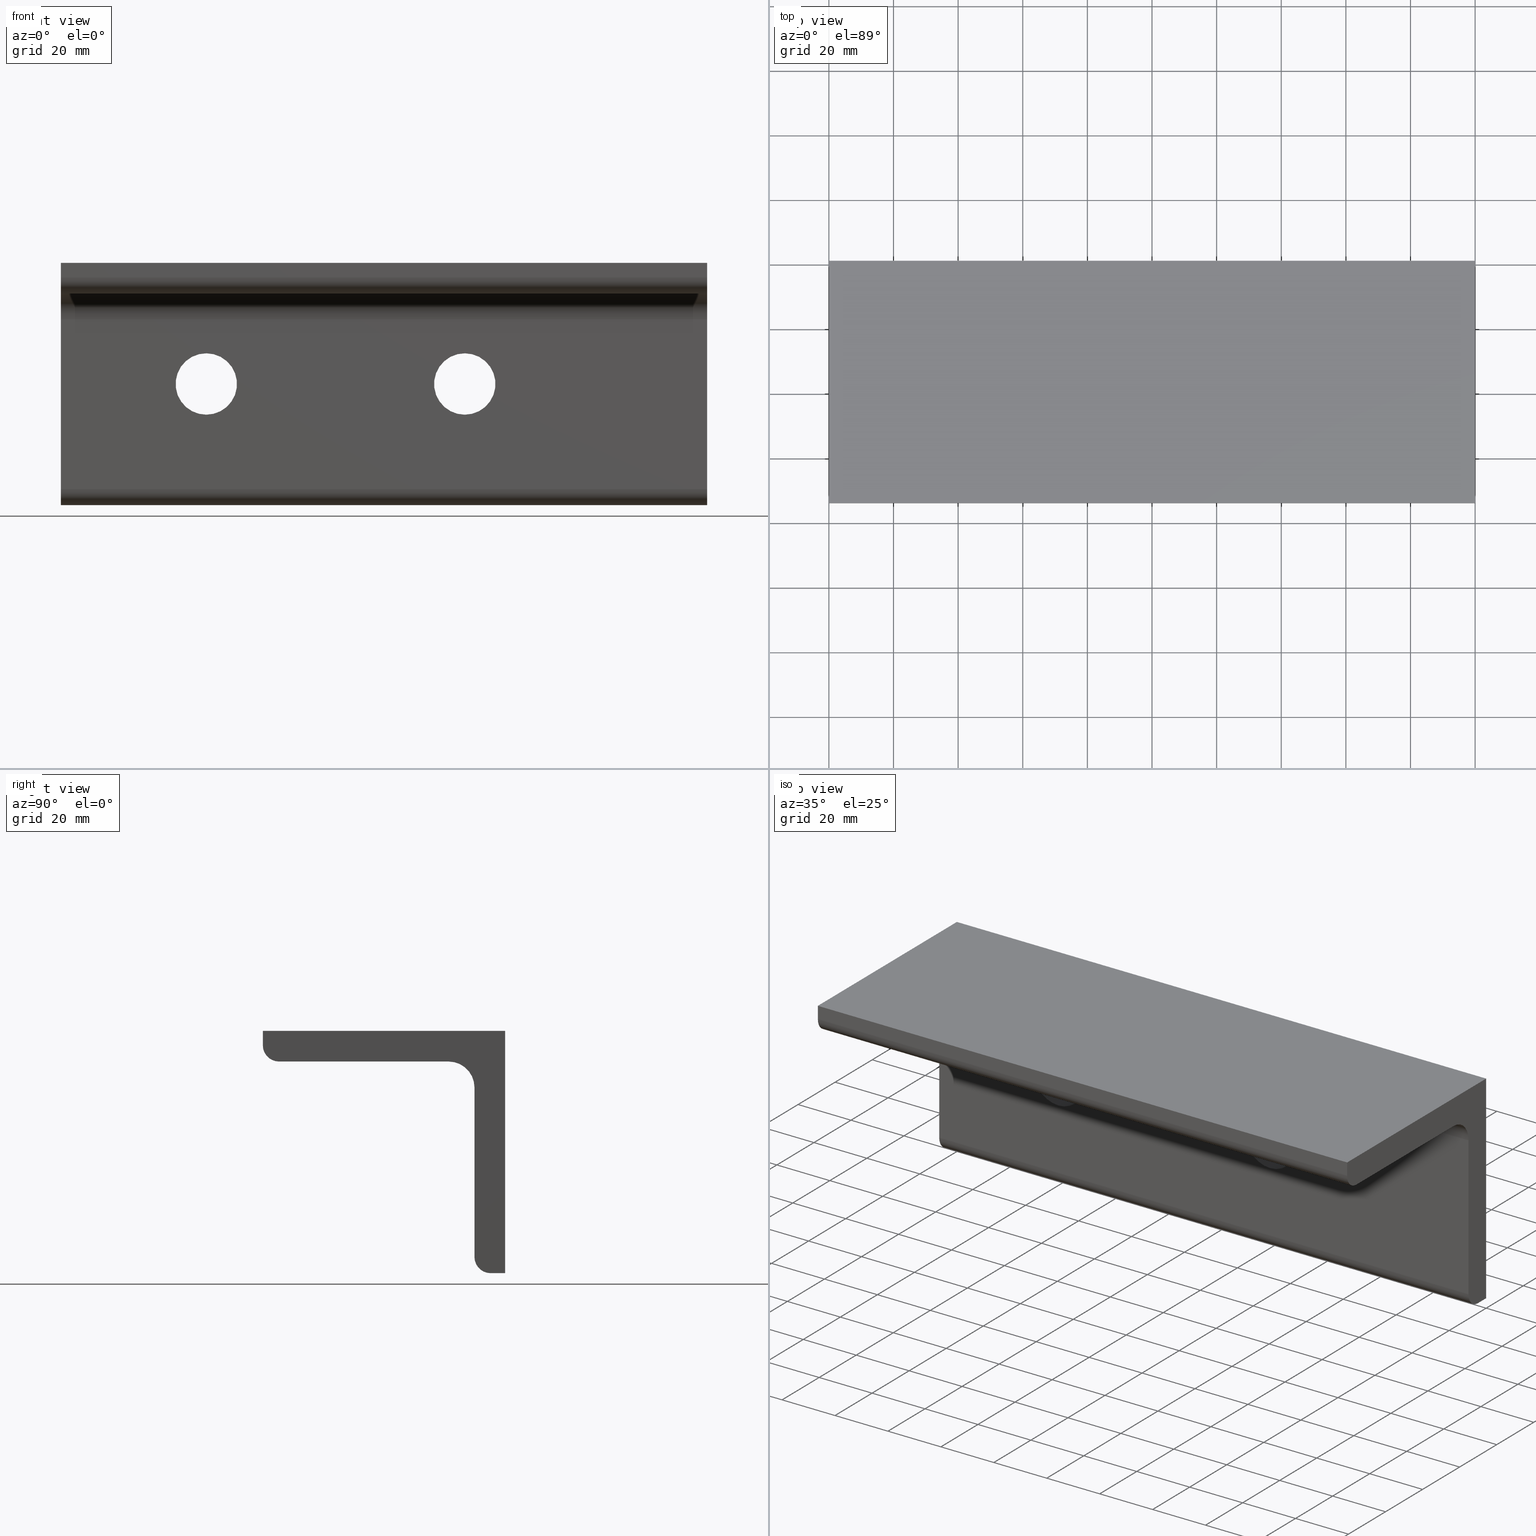
[diagram: canonical four-view strip — front | top / right | iso, engineering-drawing reading convention]
A machine part, canonical four-view strip (front | top / right | iso — engineering-drawing reading convention). The complete STEP part file that produces these views, byte-faithful:
ISO-10303-21;
HEADER;
FILE_DESCRIPTION (( 'STEP AP203' ),
    '1' );
FILE_NAME ('20-20_REV_.step',
    '2026-01-19T06:02:51',
    ( '' ),
    ( '' ),
    'SwSTEP 2.0',
    'SolidWorks 2025',
    '' );
FILE_SCHEMA (( 'CONFIG_CONTROL_DESIGN' ));
ENDSEC;

DATA;
#1 = CARTESIAN_POINT ( 'NONE',  ( -100.0000000000000000, -8.106328815793483398E-13, -75.00000000000000000 ) ) ;
#2 = ORIENTED_EDGE ( 'NONE', *, *, #352, .T. ) ;
#3 = EDGE_CURVE ( 'NONE', #164, #5, #490, .T. ) ;
#4 = CARTESIAN_POINT ( 'NONE',  ( -99.99999999999998579, -75.00000000000007105, -4.499999999999216627 ) ) ;
#5 = VERTEX_POINT ( 'NONE', #443 ) ;
#6 = DIRECTION ( 'NONE',  ( -0.000000000000000000, 1.000000000000000000, -1.050085944124627333E-14 ) ) ;
#7 = ORIENTED_EDGE ( 'NONE', *, *, #445, .F. ) ;
#8 = VECTOR ( 'NONE', #151, 1000.000000000000000 ) ;
#9 = DIRECTION ( 'NONE',  ( 0.000000000000000000, 1.233581138472396191E-14, 1.000000000000000000 ) ) ;
#10 = EDGE_LOOP ( 'NONE', ( #351, #253, #160, #298 ) ) ;
#11 = EDGE_CURVE ( 'NONE', #436, #386, #295, .T. ) ;
#12 = CARTESIAN_POINT ( 'NONE',  ( 24.99999999999999289, -2.936321773791686699E-13, -28.00000000000001066 ) ) ;
#13 = VERTEX_POINT ( 'NONE', #63 ) ;
#14 = EDGE_CURVE ( 'NONE', #415, #514, #280, .T. ) ;
#15 = DIRECTION ( 'NONE',  ( 0.000000000000000000, 1.000000000000000000, 0.000000000000000000 ) ) ;
#16 = EDGE_LOOP ( 'NONE', ( #502, #248, #219, #438 ) ) ;
#17 = CIRCLE ( 'NONE', #427, 4.999999999999997335 ) ;
#18 = EDGE_CURVE ( 'NONE', #52, #523, #106, .T. ) ;
#19 = CARTESIAN_POINT ( 'NONE',  ( -55.00000000000000711, -2.940240643548956406E-13, -28.00000000000000000 ) ) ;
#20 = CIRCLE ( 'NONE', #316, 9.499999999999987566 ) ;
#21 = DIRECTION ( 'NONE',  ( -0.000000000000000000, 1.000000000000000000, -1.050085944124627333E-14 ) ) ;
#22 = APPROVAL ( #463, 'UNSPECIFIED' ) ;
#23 = FACE_OUTER_BOUND ( 'NONE', #554, .T. ) ;
#24 = PERSON ( 'UNSPECIFIED', 'UNSPECIFIED', 'UNSPECIFIED', ('UNSPECIFIED'), ('UNSPECIFIED'), ('UNSPECIFIED') ) ;
#25 = DIRECTION ( 'NONE',  ( 1.000000000000000000, 3.061616997868383141E-16, -0.000000000000000000 ) ) ;
#26 = CYLINDRICAL_SURFACE ( 'NONE', #480, 9.499999999999991118 ) ;
#27 = PERSON_AND_ORGANIZATION ( #24, #556 ) ;
#28 = DIRECTION ( 'NONE',  ( 0.000000000000000000, -1.059094332701630981E-14, -1.000000000000000000 ) ) ;
#29 = VECTOR ( 'NONE', #279, 1000.000000000000000 ) ;
#30 = APPROVAL_STATUS ( 'not_yet_approved' ) ;
#31 = CARTESIAN_POINT ( 'NONE',  ( 24.99999999999999289, -9.500000000000483169, -46.99999999999988631 ) ) ;
#32 = EDGE_CURVE ( 'NONE', #269, #13, #105, .T. ) ;
#33 = PRODUCT_DEFINITION_SHAPE ( 'NONE', 'NONE',  #312 ) ;
#34 = DATE_AND_TIME ( #246, #278 ) ;
#35 = FACE_OUTER_BOUND ( 'NONE', #139, .T. ) ;
#36 = ORIENTED_EDGE ( 'NONE', *, *, #58, .T. ) ;
#37 = PERSON_AND_ORGANIZATION ( #24, #556 ) ;
#38 = FACE_OUTER_BOUND ( 'NONE', #10, .T. ) ;
#39 = CC_DESIGN_APPROVAL ( #80, ( #159 ) ) ;
#40 = CC_DESIGN_DATE_AND_TIME_ASSIGNMENT ( #413, #43, ( #159 ) ) ;
#41 = DIRECTION ( 'NONE',  ( 0.000000000000000000, 1.000000000000000000, 0.000000000000000000 ) ) ;
#42 = EDGE_LOOP ( 'NONE', ( #2, #257, #92, #47 ) ) ;
#43 = DATE_TIME_ROLE ( 'classification_date' ) ;
#44 = CARTESIAN_POINT ( 'NONE',  ( -100.0000000000000000, -4.500000000000759393, -69.99999999999995737 ) ) ;
#45 = ORIENTED_EDGE ( 'NONE', *, *, #426, .F. ) ;
#46 = FACE_BOUND ( 'NONE', #223, .T. ) ;
#47 = ORIENTED_EDGE ( 'NONE', *, *, #494, .T. ) ;
#48 = VECTOR ( 'NONE', #361, 1000.000000000000000 ) ;
#49 = PLANE ( 'NONE',  #184 ) ;
#50 = ORIENTED_EDGE ( 'NONE', *, *, #426, .T. ) ;
#51 = CYLINDRICAL_SURFACE ( 'NONE', #258, 9.499999999999991118 ) ;
#52 = VERTEX_POINT ( 'NONE', #31 ) ;
#53 = EDGE_CURVE ( 'NONE', #94, #127, #108, .T. ) ;
#54 = DIRECTION ( 'NONE',  ( 1.000000000000000000, 3.061616997868383141E-16, 0.000000000000000000 ) ) ;
#55 = ORIENTED_EDGE ( 'NONE', *, *, #397, .T. ) ;
#56 = AXIS2_PLACEMENT_3D ( 'NONE', #289, #454, #41 ) ;
#57 = FACE_BOUND ( 'NONE', #335, .T. ) ;
#58 = EDGE_CURVE ( 'NONE', #505, #127, #329, .T. ) ;
#59 = VERTEX_POINT ( 'NONE', #113 ) ;
#60 = FACE_BOUND ( 'NONE', #392, .T. ) ;
#61 = ORIENTED_EDGE ( 'NONE', *, *, #14, .T. ) ;
#62 = APPLICATION_PROTOCOL_DEFINITION ( 'international standard', 'config_control_design', 1994, #77 ) ;
#63 = CARTESIAN_POINT ( 'NONE',  ( 100.0000000000000000, -7.494005416219806648E-13, -75.00000000000000000 ) ) ;
#64 =( LENGTH_UNIT ( ) NAMED_UNIT ( * ) SI_UNIT ( .MILLI., .METRE. ) );
#65 = AXIS2_PLACEMENT_3D ( 'NONE', #377, #373, #550 ) ;
#66 = LINE ( 'NONE', #326, #8 ) ;
#67 = CARTESIAN_POINT ( 'NONE',  ( -55.00000000000000711, -2.936321773791685689E-13, -28.00000000000000355 ) ) ;
#68 = ORIENTED_EDGE ( 'NONE', *, *, #531, .F. ) ;
#69 = FACE_OUTER_BOUND ( 'NONE', #266, .T. ) ;
#70 = AXIS2_PLACEMENT_3D ( 'NONE', #116, #501, #247 ) ;
#71 = DIRECTION ( 'NONE',  ( -0.000000000000000000, 1.000000000000000000, -1.050085944124627333E-14 ) ) ;
#72 = VECTOR ( 'NONE', #442, 1000.000000000000000 ) ;
#73 = EDGE_CURVE ( 'NONE', #59, #479, #281, .T. ) ;
#74 = PERSON_AND_ORGANIZATION ( #24, #556 ) ;
#75 = LINE ( 'NONE', #166, #451 ) ;
#76 = COORDINATED_UNIVERSAL_TIME_OFFSET ( 10, 0, .AHEAD. ) ;
#77 = APPLICATION_CONTEXT ( 'configuration controlled 3d designs of mechanical parts and assemblies' ) ;
#78 = FACE_OUTER_BOUND ( 'NONE', #431, .T. ) ;
#79 = ORIENTED_EDGE ( 'NONE', *, *, #267, .T. ) ;
#80 = APPROVAL ( #30, 'UNSPECIFIED' ) ;
#81 = CARTESIAN_POINT ( 'NONE',  ( -100.0000000000000000, -2.306842348587790320E-14, 0.000000000000000000 ) ) ;
#82 = AXIS2_PLACEMENT_3D ( 'NONE', #534, #71, #450 ) ;
#83 = VERTEX_POINT ( 'NONE', #143 ) ;
#84 = PERSON_AND_ORGANIZATION_ROLE ( 'design_supplier' ) ;
#85 = CARTESIAN_POINT ( 'NONE',  ( -100.0000000000000000, -2.306842348587790320E-14, 0.000000000000000000 ) ) ;
#86 = VERTEX_POINT ( 'NONE', #406 ) ;
#87 = CARTESIAN_POINT ( 'NONE',  ( 100.0000000000000000, -9.500000000000147438, -17.49999999999990052 ) ) ;
#88 = EDGE_CURVE ( 'NONE', #59, #164, #416, .T. ) ;
#89 = DIRECTION ( 'NONE',  ( 1.850371707708594316E-16, -1.000000000000000000, 1.045460014855355795E-14 ) ) ;
#90 = ORIENTED_EDGE ( 'NONE', *, *, #455, .F. ) ;
#91 = PLANE ( 'NONE',  #183 ) ;
#92 = ORIENTED_EDGE ( 'NONE', *, *, #88, .F. ) ;
#93 = DIRECTION ( 'NONE',  ( 0.000000000000000000, 1.050085944124627649E-14, 1.000000000000000000 ) ) ;
#94 = VERTEX_POINT ( 'NONE', #276 ) ;
#95 = CARTESIAN_POINT ( 'NONE',  ( -100.0000000000000000, -2.306842348587790320E-14, 0.000000000000000000 ) ) ;
#96 = ORIENTED_EDGE ( 'NONE', *, *, #402, .T. ) ;
#97 = AXIS2_PLACEMENT_3D ( 'NONE', #187, #485, #535 ) ;
#98 = VECTOR ( 'NONE', #349, 1000.000000000000000 ) ;
#99 = DIRECTION ( 'NONE',  ( -3.200798152072889754E-30, 1.045460014855355953E-14, 1.000000000000000000 ) ) ;
#100 = ORIENTED_EDGE ( 'NONE', *, *, #233, .T. ) ;
#101 = DIRECTION ( 'NONE',  ( 1.000000000000000000, 3.061616997868383141E-16, 0.000000000000000000 ) ) ;
#102 = DIRECTION ( 'NONE',  ( 1.000000000000000000, 3.061616997868383141E-16, -0.000000000000000000 ) ) ;
#103 = EDGE_CURVE ( 'NONE', #225, #13, #66, .T. ) ;
#104 = DIRECTION ( 'NONE',  ( 0.000000000000000000, 0.000000000000000000, 1.000000000000000000 ) ) ;
#105 = LINE ( 'NONE', #365, #506 ) ;
#106 = CIRCLE ( 'NONE', #277, 9.499999999999987566 ) ;
#107 = VECTOR ( 'NONE', #524, 1000.000000000000000 ) ;
#108 = LINE ( 'NONE', #230, #251 ) ;
#109 = MECHANICAL_CONTEXT ( 'NONE', #222, 'mechanical' ) ;
#110 = DIRECTION ( 'NONE',  ( -0.000000000000000000, 1.000000000000000000, -1.050085944124627333E-14 ) ) ;
#111 = EDGE_CURVE ( 'NONE', #477, #415, #404, .T. ) ;
#112 = DIRECTION ( 'NONE',  ( 1.000000000000000000, 3.061616997868383141E-16, -0.000000000000000000 ) ) ;
#113 = CARTESIAN_POINT ( 'NONE',  ( -100.0000000000000000, -9.500000000000207834, -17.49999999999990052 ) ) ;
#114 = MANIFOLD_SOLID_BREP ( 'M16 Clearance Hole1', #518 ) ;
#115 = COORDINATED_UNIVERSAL_TIME_OFFSET ( 10, 0, .AHEAD. ) ;
#116 = CARTESIAN_POINT ( 'NONE',  ( -55.00000000000000711, -3.937822290467351599E-13, -37.49999999999999289 ) ) ;
#117 = VECTOR ( 'NONE', #245, 1000.000000000000000 ) ;
#118 = DIRECTION ( 'NONE',  ( 0.000000000000000000, -1.050085944124627333E-14, -1.000000000000000000 ) ) ;
#119 = ORIENTED_EDGE ( 'NONE', *, *, #217, .T. ) ;
#120 = CC_DESIGN_DATE_AND_TIME_ASSIGNMENT ( #493, #418, ( #312 ) ) ;
#121 = DIRECTION ( 'NONE',  ( -0.000000000000000000, 1.000000000000000000, -1.050085944124627333E-14 ) ) ;
#122 = EDGE_LOOP ( 'NONE', ( #61, #135, #178, #162 ) ) ;
#123 = DIRECTION ( 'NONE',  ( 0.000000000000000000, -1.000000000000000000, 1.233581138472396033E-14 ) ) ;
#124 = APPROVAL_PERSON_ORGANIZATION ( #206, #22, #336 ) ;
#125 = ORIENTED_EDGE ( 'NONE', *, *, #233, .F. ) ;
#126 = CARTESIAN_POINT ( 'NONE',  ( -100.0000000000000000, -8.106328815793483398E-13, -75.00000000000000000 ) ) ;
#127 = VERTEX_POINT ( 'NONE', #190 ) ;
#128 = DIRECTION ( 'NONE',  ( 0.000000000000000000, 1.233581138472396033E-14, 1.000000000000000000 ) ) ;
#129 = ORIENTED_EDGE ( 'NONE', *, *, #412, .F. ) ;
#130 = CARTESIAN_POINT ( 'NONE',  ( 100.0000000000000000, -17.50000000000006395, -9.499999999999815259 ) ) ;
#131 = ORIENTED_EDGE ( 'NONE', *, *, #103, .T. ) ;
#132 = VECTOR ( 'NONE', #236, 1000.000000000000000 ) ;
#133 = VECTOR ( 'NONE', #89, 1000.000000000000000 ) ;
#134 = CARTESIAN_POINT ( 'NONE',  ( -100.0000000000000000, -4.500000000000815348, -74.99999999999995737 ) ) ;
#135 = ORIENTED_EDGE ( 'NONE', *, *, #384, .F. ) ;
#136 = LINE ( 'NONE', #393, #495 ) ;
#137 = VERTEX_POINT ( 'NONE', #363 ) ;
#138 = DIRECTION ( 'NONE',  ( 1.000000000000000000, 3.061616997868383141E-16, 0.000000000000000000 ) ) ;
#139 = EDGE_LOOP ( 'NONE', ( #500, #468, #173, #182 ) ) ;
#140 = CIRCLE ( 'NONE', #472, 5.000000000000004441 ) ;
#141 = ADVANCED_FACE ( 'NONE', ( #283 ), #492, .F. ) ;
#142 = CARTESIAN_POINT ( 'NONE',  ( 24.99999999999999289, -9.500000000000282441, -27.99999999999991118 ) ) ;
#143 = CARTESIAN_POINT ( 'NONE',  ( 100.0000000000000000, -9.500000000000701661, -69.99999999999990052 ) ) ;
#144 = PRODUCT_RELATED_PRODUCT_CATEGORY ( 'detail', '', ( #340 ) ) ;
#145 = DIRECTION ( 'NONE',  ( 0.000000000000000000, 1.000000000000000000, 0.000000000000000000 ) ) ;
#146 = CARTESIAN_POINT ( 'NONE',  ( -100.0000000000000000, -2.306842348587790320E-14, 0.000000000000000000 ) ) ;
#147 = CARTESIAN_POINT ( 'NONE',  ( -100.0000000000000000, -17.50000000000020961, -17.49999999999981881 ) ) ;
#148 = EDGE_CURVE ( 'NONE', #381, #348, #447, .T. ) ;
#149 = CIRCLE ( 'NONE', #462, 9.499999999999994671 ) ;
#150 = LINE ( 'NONE', #357, #367 ) ;
#151 = DIRECTION ( 'NONE',  ( 1.000000000000000000, 3.061616997868383141E-16, -0.000000000000000000 ) ) ;
#152 = CARTESIAN_POINT ( 'NONE',  ( -99.99999999999998579, -75.00000000000007105, -4.499999999999216627 ) ) ;
#153 = APPROVAL_ROLE ( '' ) ;
#154 = CARTESIAN_POINT ( 'NONE',  ( 24.99999999999999289, -2.940240643548957416E-13, -28.00000000000000711 ) ) ;
#155 = VECTOR ( 'NONE', #169, 1000.000000000000000 ) ;
#156 = VECTOR ( 'NONE', #102, 1000.000000000000000 ) ;
#157 = ADVANCED_FACE ( 'NONE', ( #69 ), #26, .F. ) ;
#158 = DIRECTION ( 'NONE',  ( 0.000000000000000000, -1.059094332701630192E-14, -1.000000000000000000 ) ) ;
#159 = SECURITY_CLASSIFICATION ( '', '', #552 ) ;
#160 = ORIENTED_EDGE ( 'NONE', *, *, #243, .T. ) ;
#161 = PLANE ( 'NONE',  #374 ) ;
#162 = ORIENTED_EDGE ( 'NONE', *, *, #111, .T. ) ;
#163 = CARTESIAN_POINT ( 'NONE',  ( -99.99999999999998579, -70.00000000000005684, -4.499999999999268141 ) ) ;
#164 = VERTEX_POINT ( 'NONE', #242 ) ;
#165 = CALENDAR_DATE ( 2026, 19, 1 ) ;
#166 = CARTESIAN_POINT ( 'NONE',  ( -100.0000000000000000, -2.306842348587790320E-14, 0.000000000000000000 ) ) ;
#167 = CIRCLE ( 'NONE', #417, 5.000000000000004441 ) ;
#168 = ORIENTED_EDGE ( 'NONE', *, *, #384, .T. ) ;
#169 = DIRECTION ( 'NONE',  ( 2.643388153869420311E-16, -1.000000000000000000, 1.040834085586084257E-14 ) ) ;
#170 = ORIENTED_EDGE ( 'NONE', *, *, #88, .T. ) ;
#171 = EDGE_CURVE ( 'NONE', #52, #386, #410, .T. ) ;
#172 = CARTESIAN_POINT ( 'NONE',  ( 100.0000000000000000, 3.816391647148975608E-14, 0.000000000000000000 ) ) ;
#173 = ORIENTED_EDGE ( 'NONE', *, *, #262, .F. ) ;
#174 = DIRECTION ( 'NONE',  ( 0.000000000000000000, 1.000000000000000000, 0.000000000000000000 ) ) ;
#175 = CC_DESIGN_PERSON_AND_ORGANIZATION_ASSIGNMENT ( #509, #538, ( #159 ) ) ;
#176 = ORIENTED_EDGE ( 'NONE', *, *, #53, .F. ) ;
#177 = LINE ( 'NONE', #388, #98 ) ;
#178 = ORIENTED_EDGE ( 'NONE', *, *, #397, .F. ) ;
#179 = LINE ( 'NONE', #172, #133 ) ;
#180 = EDGE_LOOP ( 'NONE', ( #420, #238, #525, #50 ) ) ;
#181 = CARTESIAN_POINT ( 'NONE',  ( 100.0000000000000142, -74.99999999999995737, 7.840950111415168067E-13 ) ) ;
#182 = ORIENTED_EDGE ( 'NONE', *, *, #3, .T. ) ;
#183 = AXIS2_PLACEMENT_3D ( 'NONE', #473, #345, #306 ) ;
#184 = AXIS2_PLACEMENT_3D ( 'NONE', #95, #99, #347 ) ;
#185 = EDGE_CURVE ( 'NONE', #225, #137, #510, .T. ) ;
#186 = LINE ( 'NONE', #446, #29 ) ;
#187 = CARTESIAN_POINT ( 'NONE',  ( -55.00000000000000711, -3.933903420710080378E-13, -37.49999999999999289 ) ) ;
#188 = CARTESIAN_POINT ( 'NONE',  ( 100.0000000000000000, -4.500000000000698108, -69.99999999999995737 ) ) ;
#189 = EDGE_CURVE ( 'NONE', #228, #225, #252, .T. ) ;
#190 = CARTESIAN_POINT ( 'NONE',  ( -55.00000000000000711, -4.931485067628474561E-13, -46.99999999999997868 ) ) ;
#191 = DIRECTION ( 'NONE',  ( 0.000000000000000000, -1.050085944124627333E-14, -1.000000000000000000 ) ) ;
#192 = EDGE_CURVE ( 'NONE', #13, #511, #539, .T. ) ;
#193 = LOCAL_TIME ( 17, 2, 51.00000000000000000, #115 ) ;
#194 = PERSON_AND_ORGANIZATION_ROLE ( 'design_owner' ) ;
#195 = VERTEX_POINT ( 'NONE', #87 ) ;
#196 = CARTESIAN_POINT ( 'NONE',  ( -100.0000000000000000, -8.106328815793483398E-13, -75.00000000000000000 ) ) ;
#197 = EDGE_CURVE ( 'NONE', #94, #86, #149, .T. ) ;
#198 = PERSON_AND_ORGANIZATION ( #24, #556 ) ;
#199 = PLANE ( 'NONE',  #65 ) ;
#200 = EDGE_LOOP ( 'NONE', ( #176, #425, #429, #36 ) ) ;
#201 = ADVANCED_FACE ( 'NONE', ( #419 ), #292, .F. ) ;
#202 = VECTOR ( 'NONE', #118, 1000.000000000000000 ) ;
#203 = DIRECTION ( 'NONE',  ( 0.000000000000000000, -1.000000000000000000, 1.233581138472396033E-14 ) ) ;
#204 = LOCAL_TIME ( 17, 2, 51.00000000000000000, #76 ) ;
#205 = ORIENTED_EDGE ( 'NONE', *, *, #317, .F. ) ;
#206 = PERSON_AND_ORGANIZATION ( #24, #556 ) ;
#207 = LINE ( 'NONE', #154, #359 ) ;
#208 = ADVANCED_FACE ( 'NONE', ( #286 ), #424, .F. ) ;
#209 = ORIENTED_EDGE ( 'NONE', *, *, #185, .F. ) ;
#210 = APPROVAL_DATE_TIME ( #498, #220 ) ;
#211 = CARTESIAN_POINT ( 'NONE',  ( 100.0000000000000000, -7.494005416219806648E-13, -75.00000000000000000 ) ) ;
#212 = ORIENTED_EDGE ( 'NONE', *, *, #189, .T. ) ;
#213 = CARTESIAN_POINT ( 'NONE',  ( -55.00000000000000711, -3.937822290467351599E-13, -37.49999999999999289 ) ) ;
#214 = VECTOR ( 'NONE', #529, 1000.000000000000000 ) ;
#215 = LOCAL_TIME ( 17, 2, 51.00000000000000000, #379 ) ;
#216 = ORIENTED_EDGE ( 'NONE', *, *, #192, .T. ) ;
#217 = EDGE_CURVE ( 'NONE', #228, #269, #75, .T. ) ;
#218 = LINE ( 'NONE', #130, #155 ) ;
#219 = ORIENTED_EDGE ( 'NONE', *, *, #73, .T. ) ;
#220 = APPROVAL ( #456, 'UNSPECIFIED' ) ;
#221 = DIRECTION ( 'NONE',  ( 0.000000000000000000, -1.059094332701630192E-14, -1.000000000000000000 ) ) ;
#222 = APPLICATION_CONTEXT ( 'configuration controlled 3d designs of mechanical parts and assemblies' ) ;
#223 = EDGE_LOOP ( 'NONE', ( #68, #354 ) ) ;
#224 = DIRECTION ( 'NONE',  ( -0.000000000000000000, 1.000000000000000000, -1.050085944124627333E-14 ) ) ;
#225 = VERTEX_POINT ( 'NONE', #126 ) ;
#226 = AXIS2_PLACEMENT_3D ( 'NONE', #310, #6, #302 ) ;
#227 = FACE_OUTER_BOUND ( 'NONE', #16, .T. ) ;
#228 = VERTEX_POINT ( 'NONE', #370 ) ;
#229 = ORIENTED_EDGE ( 'NONE', *, *, #531, .T. ) ;
#230 = CARTESIAN_POINT ( 'NONE',  ( -55.00000000000000711, -4.935403937385747298E-13, -46.99999999999998579 ) ) ;
#231 = CIRCLE ( 'NONE', #226, 9.499999999999987566 ) ;
#232 = CIRCLE ( 'NONE', #497, 9.499999999999994671 ) ;
#233 = EDGE_CURVE ( 'NONE', #523, #436, #207, .T. ) ;
#234 = ORIENTED_EDGE ( 'NONE', *, *, #73, .F. ) ;
#235 = DIRECTION ( 'NONE',  ( 0.000000000000000000, -1.059094332701630981E-14, -1.000000000000000000 ) ) ;
#236 = DIRECTION ( 'NONE',  ( 1.000000000000000000, 3.061616997868383141E-16, -0.000000000000000000 ) ) ;
#237 = CARTESIAN_POINT ( 'NONE',  ( 100.0000000000000000, -4.500000000000698108, -69.99999999999995737 ) ) ;
#238 = ORIENTED_EDGE ( 'NONE', *, *, #540, .F. ) ;
#239 = VECTOR ( 'NONE', #334, 1000.000000000000000 ) ;
#240 = AXIS2_PLACEMENT_3D ( 'NONE', #360, #104, #319 ) ;
#241 = CALENDAR_DATE ( 2026, 19, 1 ) ;
#242 = CARTESIAN_POINT ( 'NONE',  ( -100.0000000000000000, -17.50000000000012790, -9.499999999999815259 ) ) ;
#243 = EDGE_CURVE ( 'NONE', #477, #381, #140, .T. ) ;
#244 = COORDINATED_UNIVERSAL_TIME_OFFSET ( 10, 0, .AHEAD. ) ;
#245 = DIRECTION ( 'NONE',  ( 2.643388153869420311E-16, -1.000000000000000000, 1.040834085586084257E-14 ) ) ;
#246 = CALENDAR_DATE ( 2026, 19, 1 ) ;
#247 = DIRECTION ( 'NONE',  ( 0.000000000000000000, 1.050085944124627649E-14, 1.000000000000000000 ) ) ;
#248 = ORIENTED_EDGE ( 'NONE', *, *, #494, .F. ) ;
#249 = PERSON_AND_ORGANIZATION_ROLE ( 'creator' ) ;
#250 = ADVANCED_FACE ( 'NONE', ( #547 ), #422, .T. ) ;
#251 = VECTOR ( 'NONE', #21, 1000.000000000000000 ) ;
#252 = LINE ( 'NONE', #85, #202 ) ;
#253 = ORIENTED_EDGE ( 'NONE', *, *, #111, .F. ) ;
#254 = DIRECTION ( 'NONE',  ( 1.000000000000000000, 3.061616997868383141E-16, 0.000000000000000000 ) ) ;
#255 = ORIENTED_EDGE ( 'NONE', *, *, #267, .F. ) ;
#256 = DIRECTION ( 'NONE',  ( 0.000000000000000000, 1.000000000000000000, 0.000000000000000000 ) ) ;
#257 = ORIENTED_EDGE ( 'NONE', *, *, #3, .F. ) ;
#258 = AXIS2_PLACEMENT_3D ( 'NONE', #213, #224, #93 ) ;
#259 = DIRECTION ( 'NONE',  ( 1.000000000000000000, 3.061616997868383141E-16, 0.000000000000000000 ) ) ;
#260 = VECTOR ( 'NONE', #434, 1000.000000000000000 ) ;
#261 = ORIENTED_EDGE ( 'NONE', *, *, #387, .F. ) ;
#262 = EDGE_CURVE ( 'NONE', #164, #381, #380, .T. ) ;
#263 = DIRECTION ( 'NONE',  ( 0.000000000000000000, 1.000000000000000000, 0.000000000000000000 ) ) ;
#264 = ORIENTED_EDGE ( 'NONE', *, *, #217, .F. ) ;
#265 = CARTESIAN_POINT ( 'NONE',  ( 100.0000000000000000, -17.50000000000014566, -17.49999999999981881 ) ) ;
#266 = EDGE_LOOP ( 'NONE', ( #460, #307, #100, #389 ) ) ;
#267 = EDGE_CURVE ( 'NONE', #228, #551, #459, .T. ) ;
#268 = CARTESIAN_POINT ( 'NONE',  ( 100.0000000000000000, -9.500000000000149214, -17.49999999999990052 ) ) ;
#269 = VERTEX_POINT ( 'NONE', #299 ) ;
#270 = PLANE ( 'NONE',  #541 ) ;
#271 = ORIENTED_EDGE ( 'NONE', *, *, #294, .F. ) ;
#272 = DIRECTION ( 'NONE',  ( 3.061616997868383141E-16, -1.000000000000000000, 1.050085944124627333E-14 ) ) ;
#273 = DIRECTION ( 'NONE',  ( 0.000000000000000000, 1.050085944124627491E-14, 1.000000000000000000 ) ) ;
#274 = ADVANCED_FACE ( 'NONE', ( #35 ), #199, .F. ) ;
#275 = CARTESIAN_POINT ( 'NONE',  ( -99.99999999999998579, -75.00000000000001421, 7.840950111415168067E-13 ) ) ;
#276 = CARTESIAN_POINT ( 'NONE',  ( -55.00000000000000711, -9.500000000000508038, -46.99999999999988631 ) ) ;
#277 = AXIS2_PLACEMENT_3D ( 'NONE', #487, #537, #28 ) ;
#278 = LOCAL_TIME ( 17, 2, 51.00000000000000000, #244 ) ;
#279 = DIRECTION ( 'NONE',  ( 1.000000000000000000, 3.061616997868383141E-16, -0.000000000000000000 ) ) ;
#280 = LINE ( 'NONE', #400, #214 ) ;
#281 = LINE ( 'NONE', #320, #48 ) ;
#282 = PERSON_AND_ORGANIZATION ( #24, #556 ) ;
#283 = FACE_OUTER_BOUND ( 'NONE', #489, .T. ) ;
#284 = AXIS2_PLACEMENT_3D ( 'NONE', #44, #496, #256 ) ;
#285 = COORDINATED_UNIVERSAL_TIME_OFFSET ( 10, 0, .AHEAD. ) ;
#286 = FACE_OUTER_BOUND ( 'NONE', #42, .T. ) ;
#287 = ADVANCED_FACE ( 'NONE', ( #38 ), #414, .T. ) ;
#288 = ORIENTED_EDGE ( 'NONE', *, *, #352, .F. ) ;
#289 = CARTESIAN_POINT ( 'NONE',  ( -100.0000000000000000, -17.50000000000020961, -17.49999999999981881 ) ) ;
#290 = ORIENTED_EDGE ( 'NONE', *, *, #53, .T. ) ;
#291 = DATE_AND_TIME ( #333, #215 ) ;
#292 = CYLINDRICAL_SURFACE ( 'NONE', #70, 9.499999999999991118 ) ;
#293 = EDGE_LOOP ( 'NONE', ( #212, #394, #90, #234, #170, #474, #423, #55, #255 ) ) ;
#294 = EDGE_CURVE ( 'NONE', #127, #505, #303, .T. ) ;
#295 = CIRCLE ( 'NONE', #526, 9.499999999999987566 ) ;
#296 = AXIS2_PLACEMENT_3D ( 'NONE', #237, #403, #15 ) ;
#297 = DIRECTION ( 'NONE',  ( 1.000000000000000000, 3.061616997868383141E-16, -0.000000000000000000 ) ) ;
#298 = ORIENTED_EDGE ( 'NONE', *, *, #148, .T. ) ;
#299 = CARTESIAN_POINT ( 'NONE',  ( 100.0000000000000000, 3.816391647148975608E-14, 0.000000000000000000 ) ) ;
#300 = DIRECTION ( 'NONE',  ( -3.061616997868383141E-16, 1.000000000000000000, -1.233581138472396191E-14 ) ) ;
#301 = ORIENTED_EDGE ( 'NONE', *, *, #58, .F. ) ;
#302 = DIRECTION ( 'NONE',  ( 0.000000000000000000, 1.050085944124627491E-14, 1.000000000000000000 ) ) ;
#303 = CIRCLE ( 'NONE', #507, 9.499999999999987566 ) ;
#304 = ORIENTED_EDGE ( 'NONE', *, *, #103, .F. ) ;
#305 = ADVANCED_FACE ( 'NONE', ( #78 ), #161, .F. ) ;
#306 = DIRECTION ( 'NONE',  ( 0.000000000000000000, -1.054051026355431351E-14, -1.000000000000000000 ) ) ;
#307 = ORIENTED_EDGE ( 'NONE', *, *, #18, .T. ) ;
#308 = ADVANCED_FACE ( 'NONE', ( #353 ), #49, .T. ) ;
#309 = ADVANCED_BREP_SHAPE_REPRESENTATION ( '20-20_REV_', ( #114, #240 ), #341 ) ;
#310 = CARTESIAN_POINT ( 'NONE',  ( 24.99999999999999289, -3.933903420710081387E-13, -37.50000000000000000 ) ) ;
#311 = ORIENTED_EDGE ( 'NONE', *, *, #197, .F. ) ;
#312 = PRODUCT_DEFINITION ( 'UNKNOWN', '', #452, #545 ) ;
#313 = FACE_OUTER_BOUND ( 'NONE', #122, .T. ) ;
#314 = CC_DESIGN_SECURITY_CLASSIFICATION ( #159, ( #452 ) ) ;
#315 = ORIENTED_EDGE ( 'NONE', *, *, #512, .F. ) ;
#316 = AXIS2_PLACEMENT_3D ( 'NONE', #530, #399, #235 ) ;
#317 = EDGE_CURVE ( 'NONE', #5, #348, #218, .T. ) ;
#318 = CARTESIAN_POINT ( 'NONE',  ( -100.0000000000000000, -17.50000000000012790, -9.499999999999815259 ) ) ;
#319 = DIRECTION ( 'NONE',  ( 1.000000000000000000, 0.000000000000000000, 0.000000000000000000 ) ) ;
#320 = CARTESIAN_POINT ( 'NONE',  ( -100.0000000000000000, -9.500000000000209610, -17.49999999999990052 ) ) ;
#321 = ADVANCED_FACE ( 'NONE', ( #390 ), #51, .F. ) ;
#322 = CARTESIAN_POINT ( 'NONE',  ( -99.99999999999998579, -70.00000000000011369, -9.499999999999271694 ) ) ;
#323 = LINE ( 'NONE', #19, #72 ) ;
#324 = CARTESIAN_POINT ( 'NONE',  ( 24.99999999999999289, -3.937822290467352609E-13, -37.50000000000000000 ) ) ;
#325 = FACE_BOUND ( 'NONE', #458, .T. ) ;
#326 = CARTESIAN_POINT ( 'NONE',  ( -100.0000000000000000, -8.106328815793483398E-13, -75.00000000000000000 ) ) ;
#327 = APPROVAL_ROLE ( '' ) ;
#328 = DIRECTION ( 'NONE',  ( 0.000000000000000000, 1.000000000000000000, 0.000000000000000000 ) ) ;
#329 = CIRCLE ( 'NONE', #97, 9.499999999999987566 ) ;
#330 = AXIS2_PLACEMENT_3D ( 'NONE', #439, #486, #533 ) ;
#331 = PERSON_AND_ORGANIZATION_ROLE ( 'creator' ) ;
#332 = DIRECTION ( 'NONE',  ( 3.061616997868383141E-16, -1.000000000000000000, 1.054051026355431351E-14 ) ) ;
#333 = CALENDAR_DATE ( 2026, 19, 1 ) ;
#334 = DIRECTION ( 'NONE',  ( -0.000000000000000000, 1.000000000000000000, -1.050085944124627333E-14 ) ) ;
#335 = EDGE_LOOP ( 'NONE', ( #261, #311 ) ) ;
#336 = APPROVAL_ROLE ( '' ) ;
#337 = DIRECTION ( 'NONE',  ( 0.000000000000000000, 1.000000000000000000, 0.000000000000000000 ) ) ;
#338 = ORIENTED_EDGE ( 'NONE', *, *, #387, .T. ) ;
#339 = APPROVAL_DATE_TIME ( #34, #80 ) ;
#340 = PRODUCT ( '20-20_REV_', '20-20_REV_', '', ( #109 ) ) ;
#341 =( GEOMETRIC_REPRESENTATION_CONTEXT ( 3 ) GLOBAL_UNCERTAINTY_ASSIGNED_CONTEXT ( ( #371 ) ) GLOBAL_UNIT_ASSIGNED_CONTEXT ( ( #64, #484, #491 ) ) REPRESENTATION_CONTEXT ( 'NONE', 'WORKASPACE' ) );
#342 = DIRECTION ( 'NONE',  ( 1.000000000000000000, 3.061616997868383141E-16, -0.000000000000000000 ) ) ;
#343 = ORIENTED_EDGE ( 'NONE', *, *, #445, .T. ) ;
#344 = ADVANCED_FACE ( 'NONE', ( #57, #46, #227 ), #91, .T. ) ;
#345 = DIRECTION ( 'NONE',  ( 3.061616997868383141E-16, -1.000000000000000000, 1.054051026355431351E-14 ) ) ;
#346 = CC_DESIGN_PERSON_AND_ORGANIZATION_ASSIGNMENT ( #421, #331, ( #312 ) ) ;
#347 = DIRECTION ( 'NONE',  ( 0.000000000000000000, -1.000000000000000000, 1.045460014855355953E-14 ) ) ;
#348 = VERTEX_POINT ( 'NONE', #476 ) ;
#349 = DIRECTION ( 'NONE',  ( 1.000000000000000000, 3.061616997868383141E-16, -0.000000000000000000 ) ) ;
#350 = AXIS2_PLACEMENT_3D ( 'NONE', #163, #297, #337 ) ;
#351 = ORIENTED_EDGE ( 'NONE', *, *, #402, .F. ) ;
#352 = EDGE_CURVE ( 'NONE', #195, #5, #398, .T. ) ;
#353 = FACE_OUTER_BOUND ( 'NONE', #408, .T. ) ;
#354 = ORIENTED_EDGE ( 'NONE', *, *, #18, .F. ) ;
#355 = CARTESIAN_POINT ( 'NONE',  ( -100.0000000000000000, -4.500000000000759393, -69.99999999999995737 ) ) ;
#356 = ORIENTED_EDGE ( 'NONE', *, *, #508, .T. ) ;
#357 = CARTESIAN_POINT ( 'NONE',  ( -100.0000000000000000, -9.500000000000763833, -69.99999999999990052 ) ) ;
#358 = ORIENTED_EDGE ( 'NONE', *, *, #14, .F. ) ;
#359 = VECTOR ( 'NONE', #121, 1000.000000000000000 ) ;
#360 = CARTESIAN_POINT ( 'NONE',  ( 0.000000000000000000, 0.000000000000000000, 0.000000000000000000 ) ) ;
#361 = DIRECTION ( 'NONE',  ( 0.000000000000000000, -1.054051026355431351E-14, -1.000000000000000000 ) ) ;
#362 = FACE_OUTER_BOUND ( 'NONE', #293, .T. ) ;
#363 = CARTESIAN_POINT ( 'NONE',  ( -100.0000000000000000, -4.500000000000815348, -74.99999999999995737 ) ) ;
#364 = PLANE ( 'NONE',  #409 ) ;
#365 = CARTESIAN_POINT ( 'NONE',  ( 100.0000000000000000, 3.816391647148975608E-14, 0.000000000000000000 ) ) ;
#366 = EDGE_CURVE ( 'NONE', #195, #83, #385, .T. ) ;
#367 = VECTOR ( 'NONE', #112, 1000.000000000000000 ) ;
#368 = CARTESIAN_POINT ( 'NONE',  ( -100.0000000000000000, -9.500000000000763833, -69.99999999999990052 ) ) ;
#369 = CARTESIAN_POINT ( 'NONE',  ( 24.99999999999999289, -3.933903420710081387E-13, -37.50000000000000000 ) ) ;
#370 = CARTESIAN_POINT ( 'NONE',  ( -100.0000000000000000, -2.306842348587790320E-14, 0.000000000000000000 ) ) ;
#371 = UNCERTAINTY_MEASURE_WITH_UNIT (LENGTH_MEASURE( 1.000000000000000082E-05 ), #64, 'distance_accuracy_value', 'NONE');
#372 = ADVANCED_FACE ( 'NONE', ( #313 ), #270, .F. ) ;
#373 = DIRECTION ( 'NONE',  ( -3.186635328391150975E-30, 1.040834085586084257E-14, 1.000000000000000000 ) ) ;
#374 = AXIS2_PLACEMENT_3D ( 'NONE', #1, #432, #382 ) ;
#375 = CARTESIAN_POINT ( 'NONE',  ( 24.99999999999999289, -4.935403937385748307E-13, -46.99999999999998579 ) ) ;
#376 = ORIENTED_EDGE ( 'NONE', *, *, #412, .T. ) ;
#377 = CARTESIAN_POINT ( 'NONE',  ( -100.0000000000000000, -17.50000000000012790, -9.499999999999815259 ) ) ;
#378 = ORIENTED_EDGE ( 'NONE', *, *, #171, .T. ) ;
#379 = COORDINATED_UNIVERSAL_TIME_OFFSET ( 10, 0, .AHEAD. ) ;
#380 = LINE ( 'NONE', #553, #117 ) ;
#381 = VERTEX_POINT ( 'NONE', #515 ) ;
#382 = DIRECTION ( 'NONE',  ( 0.000000000000000000, -1.000000000000000000, 1.233581138472396191E-14 ) ) ;
#383 = ORIENTED_EDGE ( 'NONE', *, *, #189, .F. ) ;
#384 = EDGE_CURVE ( 'NONE', #551, #514, #177, .T. ) ;
#385 = LINE ( 'NONE', #268, #107 ) ;
#386 = VERTEX_POINT ( 'NONE', #522 ) ;
#387 = EDGE_CURVE ( 'NONE', #86, #94, #232, .T. ) ;
#388 = CARTESIAN_POINT ( 'NONE',  ( -99.99999999999998579, -75.00000000000001421, 7.840950111415168067E-13 ) ) ;
#389 = ORIENTED_EDGE ( 'NONE', *, *, #11, .T. ) ;
#390 = FACE_OUTER_BOUND ( 'NONE', #200, .T. ) ;
#391 = VECTOR ( 'NONE', #203, 1000.000000000000000 ) ;
#392 = EDGE_LOOP ( 'NONE', ( #466, #129 ) ) ;
#393 = CARTESIAN_POINT ( 'NONE',  ( -99.99999999999998579, -75.00000000000007105, -4.499999999999216627 ) ) ;
#394 = ORIENTED_EDGE ( 'NONE', *, *, #185, .T. ) ;
#395 = DIRECTION ( 'NONE',  ( -3.061616997868383141E-16, 1.000000000000000000, 0.000000000000000000 ) ) ;
#396 = ORIENTED_EDGE ( 'NONE', *, *, #192, .F. ) ;
#397 = EDGE_CURVE ( 'NONE', #477, #551, #136, .T. ) ;
#398 = CIRCLE ( 'NONE', #482, 8.000000000000000000 ) ;
#399 = DIRECTION ( 'NONE',  ( 3.061616997868383141E-16, -1.000000000000000000, 1.054051026355431351E-14 ) ) ;
#400 = CARTESIAN_POINT ( 'NONE',  ( 100.0000000000000142, -75.00000000000001421, -4.499999999999216627 ) ) ;
#401 = LOCAL_TIME ( 17, 2, 51.00000000000000000, #285 ) ;
#402 = EDGE_CURVE ( 'NONE', #415, #348, #167, .T. ) ;
#403 = DIRECTION ( 'NONE',  ( 1.000000000000000000, 3.061616997868383141E-16, 0.000000000000000000 ) ) ;
#404 = LINE ( 'NONE', #152, #461 ) ;
#405 = PLANE ( 'NONE',  #330 ) ;
#406 = CARTESIAN_POINT ( 'NONE',  ( -55.00000000000000711, -9.500000000000307310, -27.99999999999990408 ) ) ;
#407 = APPLICATION_PROTOCOL_DEFINITION ( 'international standard', 'config_control_design', 1994, #222 ) ;
#408 = EDGE_LOOP ( 'NONE', ( #7, #264, #79, #168 ) ) ;
#409 = AXIS2_PLACEMENT_3D ( 'NONE', #188, #101, #395 ) ;
#410 = LINE ( 'NONE', #375, #239 ) ;
#411 = DIRECTION ( 'NONE',  ( 1.850371707708594316E-16, -1.000000000000000000, 1.045460014855355795E-14 ) ) ;
#412 = EDGE_CURVE ( 'NONE', #386, #436, #231, .T. ) ;
#413 = DATE_AND_TIME ( #165, #204 ) ;
#414 = CYLINDRICAL_SURFACE ( 'NONE', #350, 5.000000000000004441 ) ;
#415 = VERTEX_POINT ( 'NONE', #478 ) ;
#416 = CIRCLE ( 'NONE', #471, 8.000000000000000000 ) ;
#417 = AXIS2_PLACEMENT_3D ( 'NONE', #481, #138, #174 ) ;
#418 = DATE_TIME_ROLE ( 'creation_date' ) ;
#419 = FACE_OUTER_BOUND ( 'NONE', #517, .T. ) ;
#420 = ORIENTED_EDGE ( 'NONE', *, *, #508, .F. ) ;
#421 = PERSON_AND_ORGANIZATION ( #24, #556 ) ;
#422 = CYLINDRICAL_SURFACE ( 'NONE', #284, 4.999999999999997335 ) ;
#423 = ORIENTED_EDGE ( 'NONE', *, *, #243, .F. ) ;
#424 = CYLINDRICAL_SURFACE ( 'NONE', #56, 8.000000000000000000 ) ;
#425 = ORIENTED_EDGE ( 'NONE', *, *, #197, .T. ) ;
#426 = EDGE_CURVE ( 'NONE', #137, #511, #520, .T. ) ;
#427 = AXIS2_PLACEMENT_3D ( 'NONE', #355, #259, #263 ) ;
#428 = DIRECTION ( 'NONE',  ( 0.000000000000000000, 1.000000000000000000, 0.000000000000000000 ) ) ;
#429 = ORIENTED_EDGE ( 'NONE', *, *, #512, .T. ) ;
#430 = FACE_OUTER_BOUND ( 'NONE', #549, .T. ) ;
#431 = EDGE_LOOP ( 'NONE', ( #216, #45, #209, #131 ) ) ;
#432 = DIRECTION ( 'NONE',  ( -3.776752981796919181E-30, 1.233581138472396191E-14, 1.000000000000000000 ) ) ;
#433 = ORIENTED_EDGE ( 'NONE', *, *, #32, .T. ) ;
#434 = DIRECTION ( 'NONE',  ( 1.000000000000000000, 3.061616997868383141E-16, -0.000000000000000000 ) ) ;
#435 = CC_DESIGN_APPROVAL ( #220, ( #312 ) ) ;
#436 = VERTEX_POINT ( 'NONE', #12 ) ;
#437 = CARTESIAN_POINT ( 'NONE',  ( 100.0000000000000000, -4.500000000000753175, -74.99999999999995737 ) ) ;
#438 = ORIENTED_EDGE ( 'NONE', *, *, #540, .T. ) ;
#439 = CARTESIAN_POINT ( 'NONE',  ( -100.0000000000000000, -4.500000000000759393, -69.99999999999995737 ) ) ;
#440 = DIRECTION ( 'NONE',  ( -0.000000000000000000, 1.000000000000000000, -1.050085944124627333E-14 ) ) ;
#441 = CC_DESIGN_PERSON_AND_ORGANIZATION_ASSIGNMENT ( #27, #194, ( #340 ) ) ;
#442 = DIRECTION ( 'NONE',  ( -0.000000000000000000, 1.000000000000000000, -1.050085944124627333E-14 ) ) ;
#443 = CARTESIAN_POINT ( 'NONE',  ( 100.0000000000000000, -17.50000000000006395, -9.499999999999815259 ) ) ;
#444 = AXIS2_PLACEMENT_3D ( 'NONE', #146, #272, #527 ) ;
#445 = EDGE_CURVE ( 'NONE', #269, #514, #179, .T. ) ;
#446 = CARTESIAN_POINT ( 'NONE',  ( -100.0000000000000000, -9.500000000000207834, -17.49999999999990052 ) ) ;
#447 = LINE ( 'NONE', #322, #132 ) ;
#448 = CARTESIAN_POINT ( 'NONE',  ( -99.99999999999998579, -75.00000000000007105, -4.499999999999216627 ) ) ;
#449 = DIRECTION ( 'NONE',  ( 0.000000000000000000, 1.050085944124627649E-14, 1.000000000000000000 ) ) ;
#450 = DIRECTION ( 'NONE',  ( 0.000000000000000000, 1.050085944124627649E-14, 1.000000000000000000 ) ) ;
#451 = VECTOR ( 'NONE', #342, 1000.000000000000000 ) ;
#452 = PRODUCT_DEFINITION_FORMATION_WITH_SPECIFIED_SOURCE ( 'ANY', '', #340, .NOT_KNOWN. ) ;
#453 = CALENDAR_DATE ( 2026, 19, 1 ) ;
#454 = DIRECTION ( 'NONE',  ( 1.000000000000000000, 3.061616997868383141E-16, -0.000000000000000000 ) ) ;
#455 = EDGE_CURVE ( 'NONE', #479, #137, #17, .T. ) ;
#456 = APPROVAL_STATUS ( 'not_yet_approved' ) ;
#457 = DIRECTION ( 'NONE',  ( -0.000000000000000000, 1.000000000000000000, -1.050085944124627333E-14 ) ) ;
#458 = EDGE_LOOP ( 'NONE', ( #301, #271 ) ) ;
#459 = LINE ( 'NONE', #81, #544 ) ;
#460 = ORIENTED_EDGE ( 'NONE', *, *, #171, .F. ) ;
#461 = VECTOR ( 'NONE', #25, 1000.000000000000000 ) ;
#462 = AXIS2_PLACEMENT_3D ( 'NONE', #499, #332, #158 ) ;
#463 = APPROVAL_STATUS ( 'not_yet_approved' ) ;
#464 = CARTESIAN_POINT ( 'NONE',  ( -99.99999999999998579, -70.00000000000005684, -4.499999999999268141 ) ) ;
#465 = CC_DESIGN_PERSON_AND_ORGANIZATION_ASSIGNMENT ( #37, #249, ( #452 ) ) ;
#466 = ORIENTED_EDGE ( 'NONE', *, *, #11, .F. ) ;
#467 = CARTESIAN_POINT ( 'NONE',  ( -55.00000000000000711, -9.500000000000406786, -37.49999999999989342 ) ) ;
#468 = ORIENTED_EDGE ( 'NONE', *, *, #148, .F. ) ;
#469 = ADVANCED_FACE ( 'NONE', ( #430 ), #364, .T. ) ;
#470 = APPROVAL_PERSON_ORGANIZATION ( #282, #220, #327 ) ;
#471 = AXIS2_PLACEMENT_3D ( 'NONE', #147, #532, #145 ) ;
#472 = AXIS2_PLACEMENT_3D ( 'NONE', #464, #254, #328 ) ;
#473 = CARTESIAN_POINT ( 'NONE',  ( -100.0000000000000000, -9.500000000000209610, -17.49999999999990052 ) ) ;
#474 = ORIENTED_EDGE ( 'NONE', *, *, #262, .T. ) ;
#475 = CC_DESIGN_PERSON_AND_ORGANIZATION_ASSIGNMENT ( #74, #84, ( #452 ) ) ;
#476 = CARTESIAN_POINT ( 'NONE',  ( 100.0000000000000142, -70.00000000000005684, -9.499999999999271694 ) ) ;
#477 = VERTEX_POINT ( 'NONE', #448 ) ;
#478 = CARTESIAN_POINT ( 'NONE',  ( 100.0000000000000142, -75.00000000000001421, -4.499999999999216627 ) ) ;
#479 = VERTEX_POINT ( 'NONE', #368 ) ;
#480 = AXIS2_PLACEMENT_3D ( 'NONE', #324, #110, #449 ) ;
#481 = CARTESIAN_POINT ( 'NONE',  ( 100.0000000000000142, -70.00000000000000000, -4.499999999999268141 ) ) ;
#482 = AXIS2_PLACEMENT_3D ( 'NONE', #265, #54, #428 ) ;
#483 = ORIENTED_EDGE ( 'NONE', *, *, #294, .T. ) ;
#484 =( NAMED_UNIT ( * ) PLANE_ANGLE_UNIT ( ) SI_UNIT ( $, .RADIAN. ) );
#485 = DIRECTION ( 'NONE',  ( -0.000000000000000000, 1.000000000000000000, -1.050085944124627333E-14 ) ) ;
#486 = DIRECTION ( 'NONE',  ( 1.000000000000000000, 3.061616997868383141E-16, 0.000000000000000000 ) ) ;
#487 = CARTESIAN_POINT ( 'NONE',  ( 24.99999999999999289, -9.500000000000383693, -37.49999999999990052 ) ) ;
#488 = PLANE ( 'NONE',  #444 ) ;
#489 = EDGE_LOOP ( 'NONE', ( #229, #378, #376, #125 ) ) ;
#490 = LINE ( 'NONE', #318, #156 ) ;
#491 =( NAMED_UNIT ( * ) SI_UNIT ( $, .STERADIAN. ) SOLID_ANGLE_UNIT ( ) );
#492 = CYLINDRICAL_SURFACE ( 'NONE', #82, 9.499999999999991118 ) ;
#493 = DATE_AND_TIME ( #453, #401 ) ;
#494 = EDGE_CURVE ( 'NONE', #59, #195, #186, .T. ) ;
#495 = VECTOR ( 'NONE', #128, 1000.000000000000000 ) ;
#496 = DIRECTION ( 'NONE',  ( 1.000000000000000000, 3.061616997868383141E-16, -0.000000000000000000 ) ) ;
#497 = AXIS2_PLACEMENT_3D ( 'NONE', #467, #513, #221 ) ;
#498 = DATE_AND_TIME ( #241, #193 ) ;
#499 = CARTESIAN_POINT ( 'NONE',  ( -55.00000000000000711, -9.500000000000406786, -37.49999999999989342 ) ) ;
#500 = ORIENTED_EDGE ( 'NONE', *, *, #317, .T. ) ;
#501 = DIRECTION ( 'NONE',  ( -0.000000000000000000, 1.000000000000000000, -1.050085944124627333E-14 ) ) ;
#502 = ORIENTED_EDGE ( 'NONE', *, *, #366, .F. ) ;
#503 = SHAPE_DEFINITION_REPRESENTATION ( #33, #309 ) ;
#504 = DIRECTION ( 'NONE',  ( 0.000000000000000000, 1.050085944124627491E-14, 1.000000000000000000 ) ) ;
#505 = VERTEX_POINT ( 'NONE', #67 ) ;
#506 = VECTOR ( 'NONE', #191, 1000.000000000000000 ) ;
#507 = AXIS2_PLACEMENT_3D ( 'NONE', #542, #457, #504 ) ;
#508 = EDGE_CURVE ( 'NONE', #83, #511, #536, .T. ) ;
#509 = PERSON_AND_ORGANIZATION ( #24, #556 ) ;
#510 = LINE ( 'NONE', #196, #391 ) ;
#511 = VERTEX_POINT ( 'NONE', #437 ) ;
#512 = EDGE_CURVE ( 'NONE', #86, #505, #323, .T. ) ;
#513 = DIRECTION ( 'NONE',  ( 3.061616997868383141E-16, -1.000000000000000000, 1.054051026355431351E-14 ) ) ;
#514 = VERTEX_POINT ( 'NONE', #181 ) ;
#515 = CARTESIAN_POINT ( 'NONE',  ( -99.99999999999998579, -70.00000000000011369, -9.499999999999271694 ) ) ;
#516 = ADVANCED_FACE ( 'NONE', ( #60, #23, #325 ), #488, .F. ) ;
#517 = EDGE_LOOP ( 'NONE', ( #338, #290, #483, #315 ) ) ;
#518 = CLOSED_SHELL ( 'NONE', ( #201, #141, #516, #305, #250, #344, #208, #274, #287, #372, #308, #548, #469, #157, #321 ) ) ;
#519 = APPROVAL_PERSON_ORGANIZATION ( #198, #80, #153 ) ;
#520 = LINE ( 'NONE', #134, #260 ) ;
#521 = ORIENTED_EDGE ( 'NONE', *, *, #32, .F. ) ;
#522 = CARTESIAN_POINT ( 'NONE',  ( 24.99999999999999289, -4.931485067628475571E-13, -46.99999999999998579 ) ) ;
#523 = VERTEX_POINT ( 'NONE', #142 ) ;
#524 = DIRECTION ( 'NONE',  ( 0.000000000000000000, -1.054051026355431351E-14, -1.000000000000000000 ) ) ;
#525 = ORIENTED_EDGE ( 'NONE', *, *, #455, .T. ) ;
#526 = AXIS2_PLACEMENT_3D ( 'NONE', #369, #440, #273 ) ;
#527 = DIRECTION ( 'NONE',  ( 0.000000000000000000, -1.050085944124627333E-14, -1.000000000000000000 ) ) ;
#528 = CC_DESIGN_APPROVAL ( #22, ( #452 ) ) ;
#529 = DIRECTION ( 'NONE',  ( 0.000000000000000000, 1.233581138472396033E-14, 1.000000000000000000 ) ) ;
#530 = CARTESIAN_POINT ( 'NONE',  ( 24.99999999999999289, -9.500000000000383693, -37.49999999999990052 ) ) ;
#531 = EDGE_CURVE ( 'NONE', #523, #52, #20, .T. ) ;
#532 = DIRECTION ( 'NONE',  ( 1.000000000000000000, 3.061616997868383141E-16, 0.000000000000000000 ) ) ;
#533 = DIRECTION ( 'NONE',  ( -3.061616997868383141E-16, 1.000000000000000000, 0.000000000000000000 ) ) ;
#534 = CARTESIAN_POINT ( 'NONE',  ( 24.99999999999999289, -3.937822290467352609E-13, -37.50000000000000000 ) ) ;
#535 = DIRECTION ( 'NONE',  ( 0.000000000000000000, 1.050085944124627491E-14, 1.000000000000000000 ) ) ;
#536 = CIRCLE ( 'NONE', #296, 4.999999999999997335 ) ;
#537 = DIRECTION ( 'NONE',  ( 3.061616997868383141E-16, -1.000000000000000000, 1.054051026355431351E-14 ) ) ;
#538 = PERSON_AND_ORGANIZATION_ROLE ( 'classification_officer' ) ;
#539 = LINE ( 'NONE', #211, #555 ) ;
#540 = EDGE_CURVE ( 'NONE', #479, #83, #150, .T. ) ;
#541 = AXIS2_PLACEMENT_3D ( 'NONE', #4, #300, #9 ) ;
#542 = CARTESIAN_POINT ( 'NONE',  ( -55.00000000000000711, -3.933903420710080378E-13, -37.49999999999999289 ) ) ;
#543 = ORIENTED_EDGE ( 'NONE', *, *, #366, .T. ) ;
#544 = VECTOR ( 'NONE', #411, 1000.000000000000000 ) ;
#545 = DESIGN_CONTEXT ( 'detailed design', #77, 'design' ) ;
#546 = APPROVAL_DATE_TIME ( #291, #22 ) ;
#547 = FACE_OUTER_BOUND ( 'NONE', #180, .T. ) ;
#548 = ADVANCED_FACE ( 'NONE', ( #362 ), #405, .F. ) ;
#549 = EDGE_LOOP ( 'NONE', ( #521, #343, #358, #96, #205, #288, #543, #356, #396 ) ) ;
#550 = DIRECTION ( 'NONE',  ( 0.000000000000000000, -1.000000000000000000, 1.040834085586084257E-14 ) ) ;
#551 = VERTEX_POINT ( 'NONE', #275 ) ;
#552 = SECURITY_CLASSIFICATION_LEVEL ( 'unclassified' ) ;
#553 = CARTESIAN_POINT ( 'NONE',  ( -100.0000000000000000, -17.50000000000012790, -9.499999999999815259 ) ) ;
#554 = EDGE_LOOP ( 'NONE', ( #433, #304, #383, #119 ) ) ;
#555 = VECTOR ( 'NONE', #123, 1000.000000000000000 ) ;
#556 = ORGANIZATION ( 'UNSPECIFIED', 'UNSPECIFIED', '' ) ;
ENDSEC;
END-ISO-10303-21;
